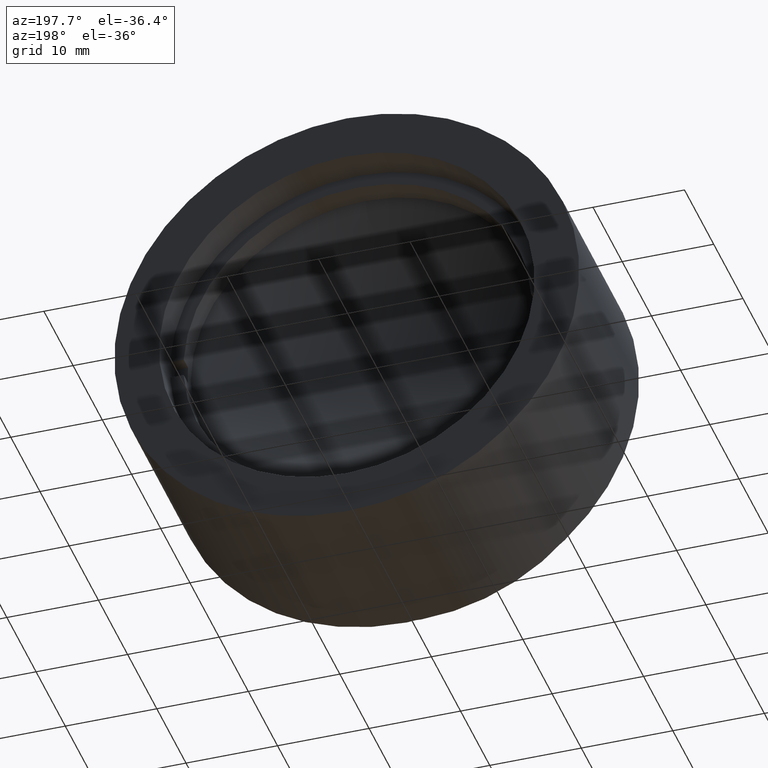
[diagram: clean part render]
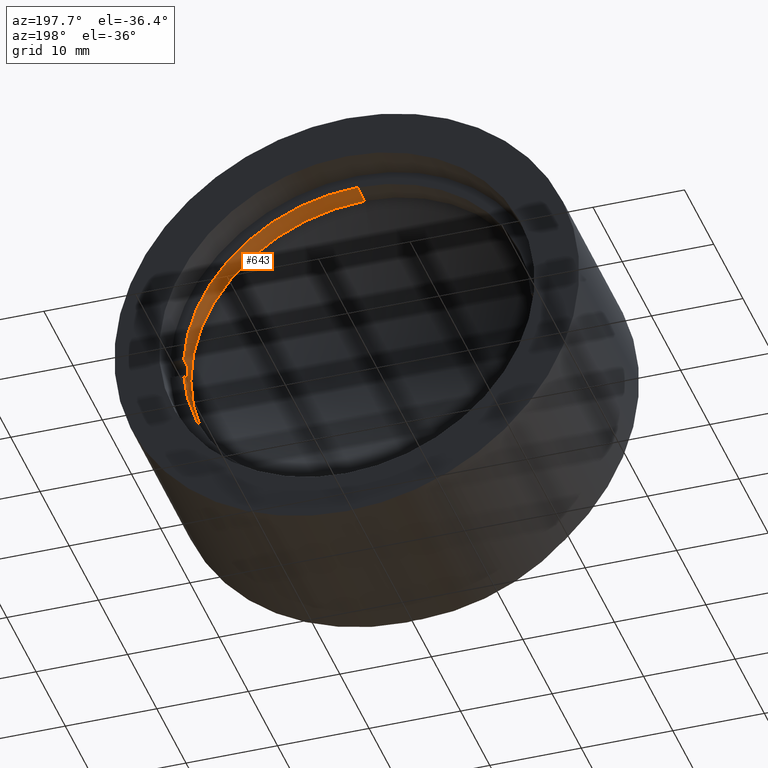
[diagram: same view with one face highlighted and labeled with its STEP entity id]
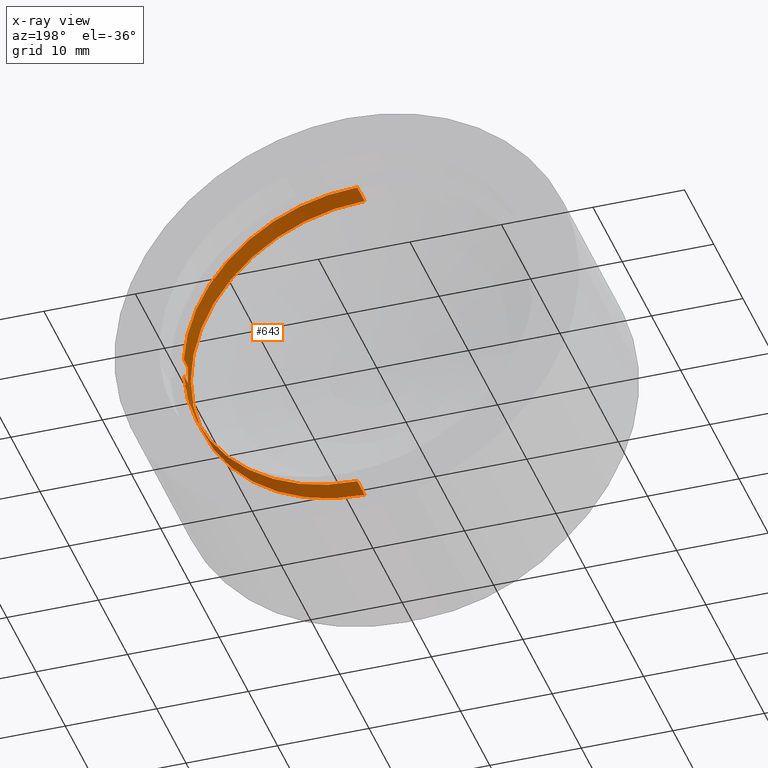
[diagram: x-ray of the same camera — body ghosted, the highlighted face saturated]
A machine part, auxiliary view. The second image highlights one B-rep face of the part: STEP entity #643.
The next image is the same camera in x-ray: the body ghosted, the highlighted face saturated — about 0% of this face is hidden behind the body in this view.
In plain terms, the highlighted cylindrical surface (partial cylindrical patch) has radius 19 mm, axis along (0, 1, 0).
Its self-contained STEP definition (entity closure, byte-faithful):
#4 = ORIENTED_EDGE ( 'NONE', *, *, #524, .F. ) ;
#7 = DIRECTION ( 'NONE',  ( 0.000000000000000000, 0.000000000000000000, 1.000000000000000000 ) ) ;
#51 = AXIS2_PLACEMENT_3D ( 'NONE', #415, #613, #7 ) ;
#69 = DIRECTION ( 'NONE',  ( 0.000000000000000000, 1.000000000000000000, 0.000000000000000000 ) ) ;
#97 = EDGE_CURVE ( 'NONE', #732, #450, #174, .T. ) ;
#104 = LINE ( 'NONE', #707, #932 ) ;
#133 = ORIENTED_EDGE ( 'NONE', *, *, #783, .T. ) ;
#143 = EDGE_LOOP ( 'NONE', ( #4, #1205, #160, #679, #1261, #280, #133, #261 ) ) ;
#160 = ORIENTED_EDGE ( 'NONE', *, *, #224, .T. ) ;
#174 = CIRCLE ( 'NONE', #670, 19.00000000000000355 ) ;
#201 = CARTESIAN_POINT ( 'NONE',  ( -8.905217641199667966, -10.58028184516615866, 7.650363943474531858 ) ) ;
#224 = EDGE_CURVE ( 'NONE', #1218, #541, #498, .T. ) ;
#258 = DIRECTION ( 'NONE',  ( 0.000000000000000000, 1.000000000000000000, 0.000000000000000000 ) ) ;
#261 = ORIENTED_EDGE ( 'NONE', *, *, #97, .T. ) ;
#266 = DIRECTION ( 'NONE',  ( 0.000000000000000000, 1.000000000000000000, 0.000000000000000000 ) ) ;
#280 = ORIENTED_EDGE ( 'NONE', *, *, #336, .F. ) ;
#286 = VERTEX_POINT ( 'NONE', #1196 ) ;
#336 = EDGE_CURVE ( 'NONE', #286, #898, #1096, .T. ) ;
#343 = VECTOR ( 'NONE', #665, 1000.000000000000000 ) ;
#353 = FACE_OUTER_BOUND ( 'NONE', #143, .T. ) ;
#354 = VECTOR ( 'NONE', #964, 1000.000000000000000 ) ;
#363 = CARTESIAN_POINT ( 'NONE',  ( 10.06844831981062960, -8.080281845166151555, 27.65036394347453097 ) ) ;
#376 = DIRECTION ( 'NONE',  ( 0.000000000000000000, 0.000000000000000000, 1.000000000000000000 ) ) ;
#380 = CARTESIAN_POINT ( 'NONE',  ( -8.905217641199669742, 50.14481056902687328, 45.65036394347453097 ) ) ;
#384 = VECTOR ( 'NONE', #793, 1000.000000000000000 ) ;
#401 = AXIS2_PLACEMENT_3D ( 'NONE', #574, #69, #487 ) ;
#415 = CARTESIAN_POINT ( 'NONE',  ( -8.905217641199669742, -10.58028184516615866, 26.65036394347453097 ) ) ;
#433 = DIRECTION ( 'NONE',  ( 0.000000000000000000, 0.000000000000000000, 1.000000000000000000 ) ) ;
#450 = VERTEX_POINT ( 'NONE', #451 ) ;
#451 = CARTESIAN_POINT ( 'NONE',  ( -8.905217641199667966, -8.080281845166151555, 7.650363943474531858 ) ) ;
#487 = DIRECTION ( 'NONE',  ( 0.000000000000000000, 0.000000000000000000, 1.000000000000000000 ) ) ;
#498 = LINE ( 'NONE', #380, #384 ) ;
#524 = EDGE_CURVE ( 'NONE', #829, #450, #1035, .T. ) ;
#531 = CIRCLE ( 'NONE', #401, 19.00000000000000355 ) ;
#535 = CARTESIAN_POINT ( 'NONE',  ( -8.905217641199669742, -8.080281845166151555, 45.65036394347453097 ) ) ;
#541 = VERTEX_POINT ( 'NONE', #535 ) ;
#565 = CARTESIAN_POINT ( 'NONE',  ( 10.06844831981062960, 50.14481056902687328, 27.65036394347453097 ) ) ;
#574 = CARTESIAN_POINT ( 'NONE',  ( -8.905217641199669742, -8.080281845166151555, 26.65036394347453097 ) ) ;
#584 = CARTESIAN_POINT ( 'NONE',  ( -8.905217641199669742, -10.58028184516615866, 45.65036394347453097 ) ) ;
#613 = DIRECTION ( 'NONE',  ( 0.000000000000000000, 1.000000000000000000, 0.000000000000000000 ) ) ;
#635 = VERTEX_POINT ( 'NONE', #363 ) ;
#643 = ADVANCED_FACE ( 'NONE', ( #353 ), #683, .F. ) ;
#665 = DIRECTION ( 'NONE',  ( 0.000000000000000000, 1.000000000000000000, 0.000000000000000000 ) ) ;
#666 = LINE ( 'NONE', #565, #354 ) ;
#670 = AXIS2_PLACEMENT_3D ( 'NONE', #1053, #258, #433 ) ;
#679 = ORIENTED_EDGE ( 'NONE', *, *, #983, .T. ) ;
#683 = CYLINDRICAL_SURFACE ( 'NONE', #753, 19.00000000000000355 ) ;
#687 = CARTESIAN_POINT ( 'NONE',  ( 10.06844831981062960, -9.580281845166156884, 27.65036394347453097 ) ) ;
#707 = CARTESIAN_POINT ( 'NONE',  ( 10.06844831981062960, 50.14481056902687328, 25.65036394347453097 ) ) ;
#711 = DIRECTION ( 'NONE',  ( 9.769232206816753749E-15, 0.000000000000000000, 1.000000000000000000 ) ) ;
#716 = CARTESIAN_POINT ( 'NONE',  ( -8.905217641199669742, -9.580281845166156884, 26.65036394347453097 ) ) ;
#732 = VERTEX_POINT ( 'NONE', #1310 ) ;
#753 = AXIS2_PLACEMENT_3D ( 'NONE', #1289, #266, #376 ) ;
#783 = EDGE_CURVE ( 'NONE', #286, #732, #104, .T. ) ;
#793 = DIRECTION ( 'NONE',  ( 0.000000000000000000, 1.000000000000000000, 0.000000000000000000 ) ) ;
#825 = DIRECTION ( 'NONE',  ( 0.000000000000000000, -1.000000000000000000, 0.000000000000000000 ) ) ;
#829 = VERTEX_POINT ( 'NONE', #201 ) ;
#849 = EDGE_CURVE ( 'NONE', #1218, #829, #982, .T. ) ;
#898 = VERTEX_POINT ( 'NONE', #687 ) ;
#932 = VECTOR ( 'NONE', #1217, 1000.000000000000000 ) ;
#964 = DIRECTION ( 'NONE',  ( 0.000000000000000000, -1.000000000000000000, 0.000000000000000000 ) ) ;
#982 = CIRCLE ( 'NONE', #51, 19.00000000000000355 ) ;
#983 = EDGE_CURVE ( 'NONE', #541, #635, #531, .T. ) ;
#1035 = LINE ( 'NONE', #1056, #343 ) ;
#1053 = CARTESIAN_POINT ( 'NONE',  ( -8.905217641199669742, -8.080281845166151555, 26.65036394347453097 ) ) ;
#1056 = CARTESIAN_POINT ( 'NONE',  ( -8.905217641199667966, 50.14481056902687328, 7.650363943474531858 ) ) ;
#1096 = CIRCLE ( 'NONE', #1260, 19.00000000000000355 ) ;
#1118 = EDGE_CURVE ( 'NONE', #635, #898, #666, .T. ) ;
#1196 = CARTESIAN_POINT ( 'NONE',  ( 10.06844831981062960, -9.580281845166156884, 25.65036394347453097 ) ) ;
#1205 = ORIENTED_EDGE ( 'NONE', *, *, #849, .F. ) ;
#1217 = DIRECTION ( 'NONE',  ( 0.000000000000000000, 1.000000000000000000, 0.000000000000000000 ) ) ;
#1218 = VERTEX_POINT ( 'NONE', #584 ) ;
#1260 = AXIS2_PLACEMENT_3D ( 'NONE', #716, #825, #711 ) ;
#1261 = ORIENTED_EDGE ( 'NONE', *, *, #1118, .T. ) ;
#1289 = CARTESIAN_POINT ( 'NONE',  ( -8.905217641199669742, 50.14481056902687328, 26.65036394347453097 ) ) ;
#1310 = CARTESIAN_POINT ( 'NONE',  ( 10.06844831981062960, -8.080281845166151555, 25.65036394347453097 ) ) ;